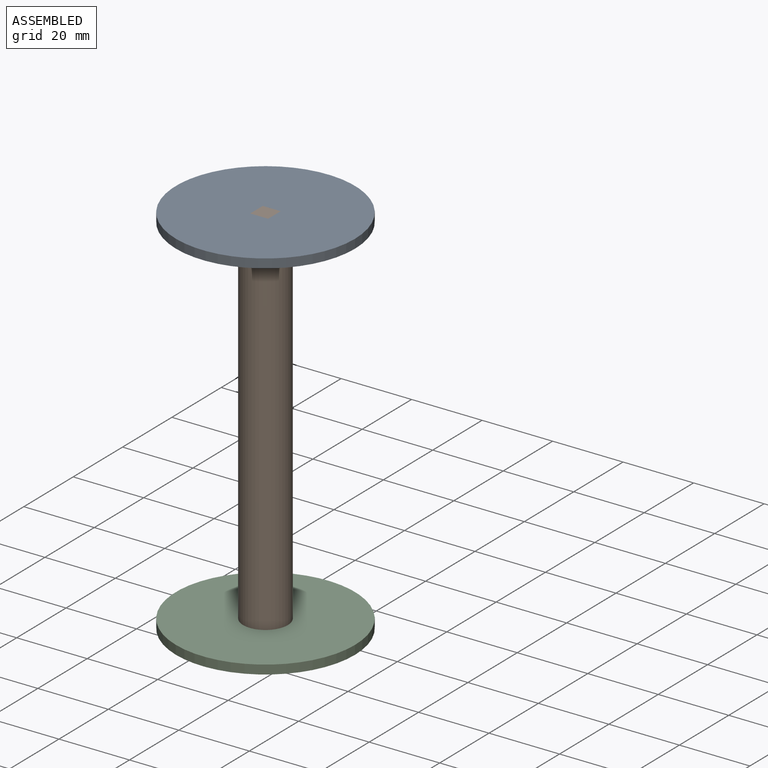
[diagram: assembled view]
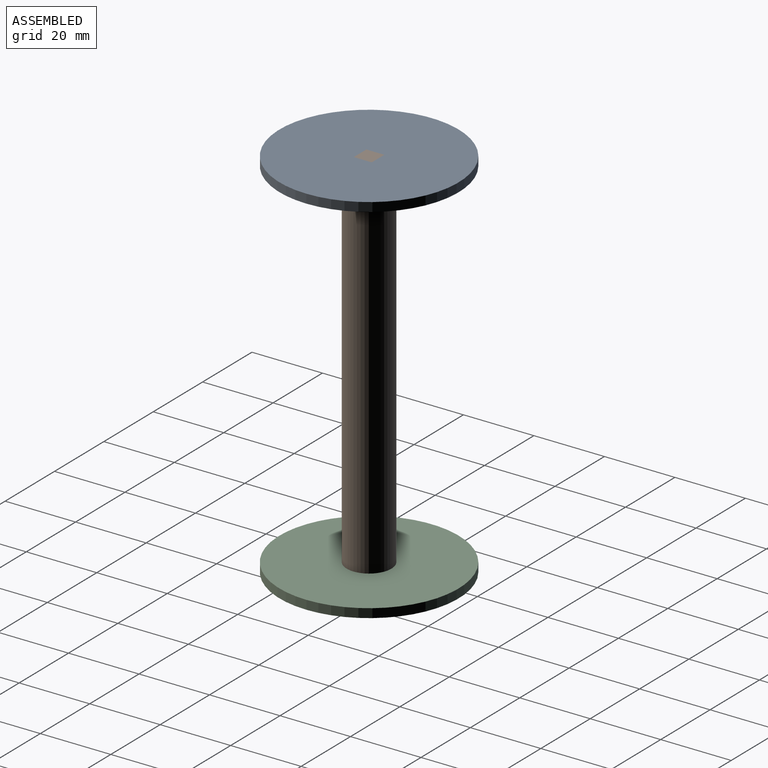
[diagram: assembled view, second angle]
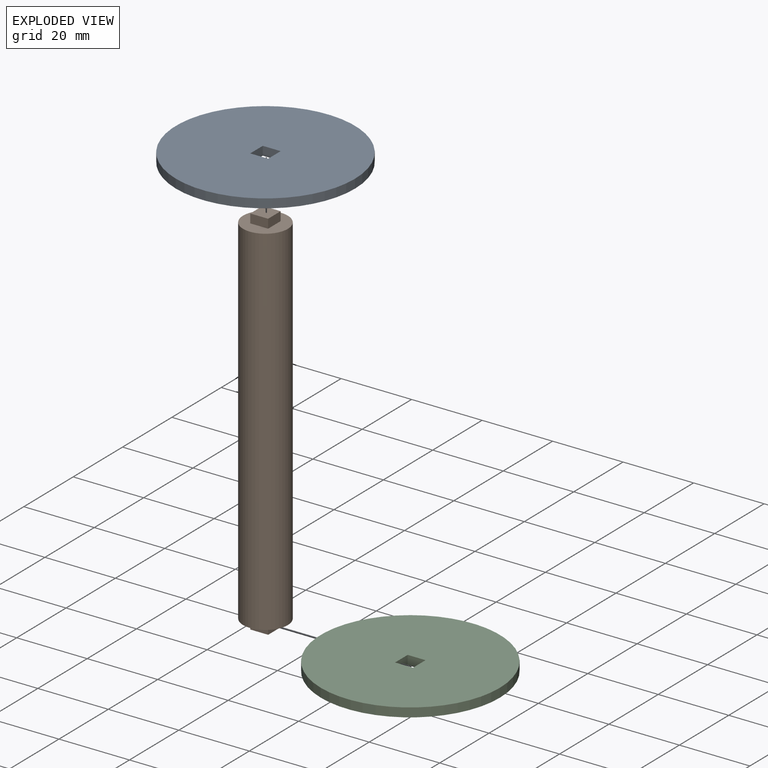
[diagram: exploded view]
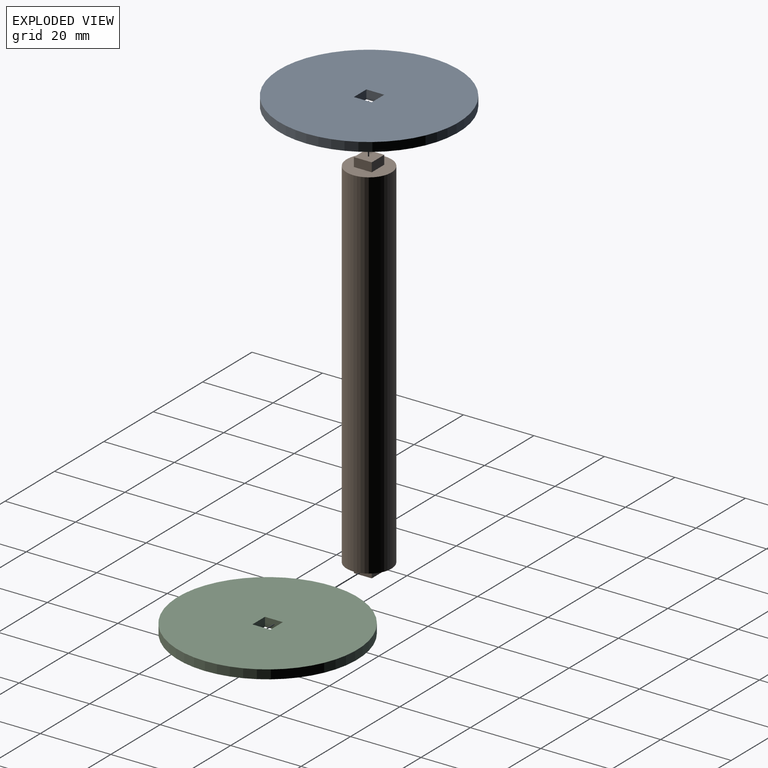
[diagram: exploded view, second angle]
ASSEMBLY  parts=3 mates=2
PART A: 7 faces, bbox 50.8x50.8x2.5 mm
  f0: plane 5.08x2.54mm, normal (-1,0,0), area 12.9mm2, adj f1,f3,f5,f6
  f1: plane 5.08x2.54mm, normal (0,1,0), area 12.9mm2, adj f0,f2,f5,f6
  f2: plane 5.08x2.54mm, normal (1,0,0), area 12.9mm2, adj f1,f3,f5,f6
  f3: plane 5.08x2.54mm, normal (0,-1,0), area 12.9mm2, adj f0,f2,f5,f6
  f4: cylinder r=25.4mm len=50.8mm, axis (0,0,-1), area 405.4mm2, adj f5,f6
  f5: plane 50.8x50.8mm, normal (0,0,1), area 2001mm2, adj f0,f1,f2,f3,f4
  f6: plane 50.8x50.8mm, normal (0,0,-1), area 2001mm2, adj f0,f1,f2,f3,f4
PART B: 13 faces, bbox 12.7x12.7x106.7 mm
  f0: plane 12.7x12.7mm, normal (0,0,1), area 100.9mm2, adj f1,f3,f4,f5,f6
  f1: cylinder r=6.35mm len=101.6mm, axis (0,0,-1), area 4053.7mm2, adj f0,f2
  f2: plane 12.7x12.7mm, normal (0,0,-1), area 100.9mm2, adj f1,f8,f9,f10,f11
  f3: plane 5.08x2.54mm, normal (0,-1,0), area 12.9mm2, adj f0,f4,f6,f7
  f4: plane 5.08x2.54mm, normal (1,0,0), area 12.9mm2, adj f0,f3,f5,f7
  f5: plane 5.08x2.54mm, normal (0,1,0), area 12.9mm2, adj f0,f4,f6,f7
  f6: plane 5.08x2.54mm, normal (-1,0,0), area 12.9mm2, adj f0,f3,f5,f7
  f7: plane 5.08x5.08mm, normal (0,0,1), area 25.8mm2, adj f3,f4,f5,f6
  f8: plane 5.08x2.54mm, normal (0,1,0), area 12.9mm2, adj f2,f9,f11,f12
  f9: plane 5.08x2.54mm, normal (1,0,0), area 12.9mm2, adj f2,f8,f10,f12
  f10: plane 5.08x2.54mm, normal (0,-1,0), area 12.9mm2, adj f2,f9,f11,f12
  f11: plane 5.08x2.54mm, normal (-1,0,0), area 12.9mm2, adj f2,f8,f10,f12
  f12: plane 5.08x5.08mm, normal (0,0,-1), area 25.8mm2, adj f8,f9,f10,f11
PART C: same geometry as A
PLACE A t=(-64.88,9.81,114.22)mm
PLACE B t=(-59.68,-33.61,12.62)mm
PLACE C t=(-64.88,9.81,10.08)mm
MATE fastened B.f4 <-> A.f0  axis (1,0,0) through (49.31,34.01,115.49)mm
MATE fastened B.f10 <-> C.f1  axis (0,-1,0) through (46.77,31.47,11.35)mm
